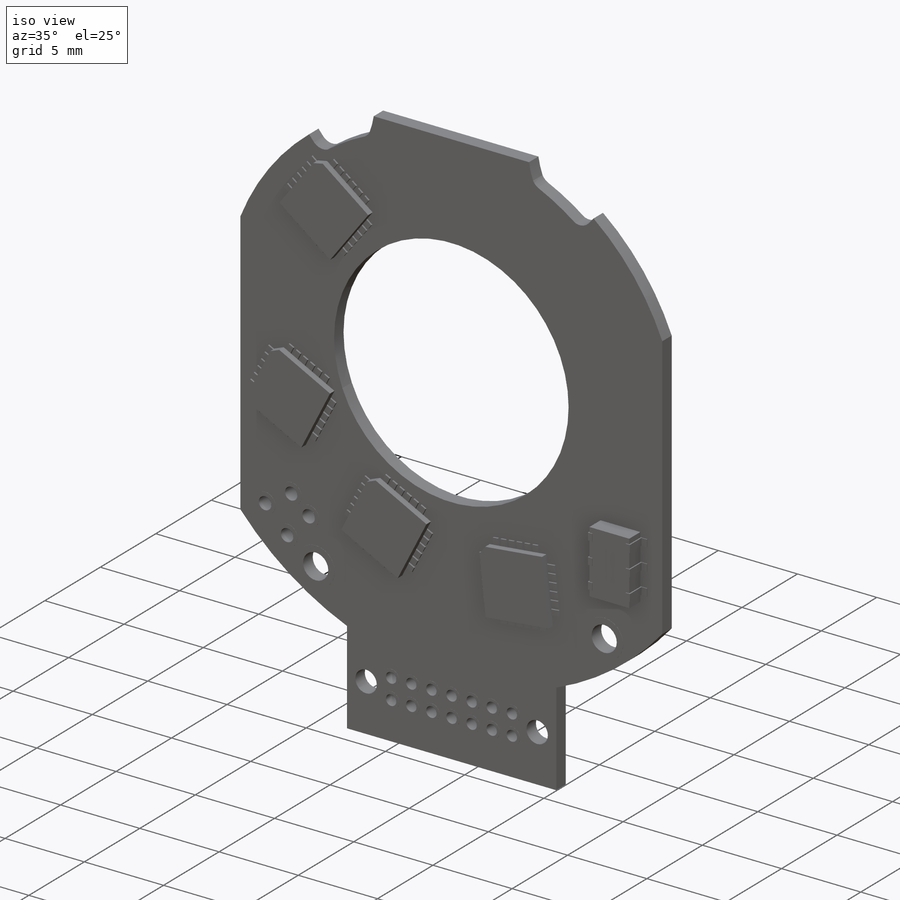
[diagram: iso view]
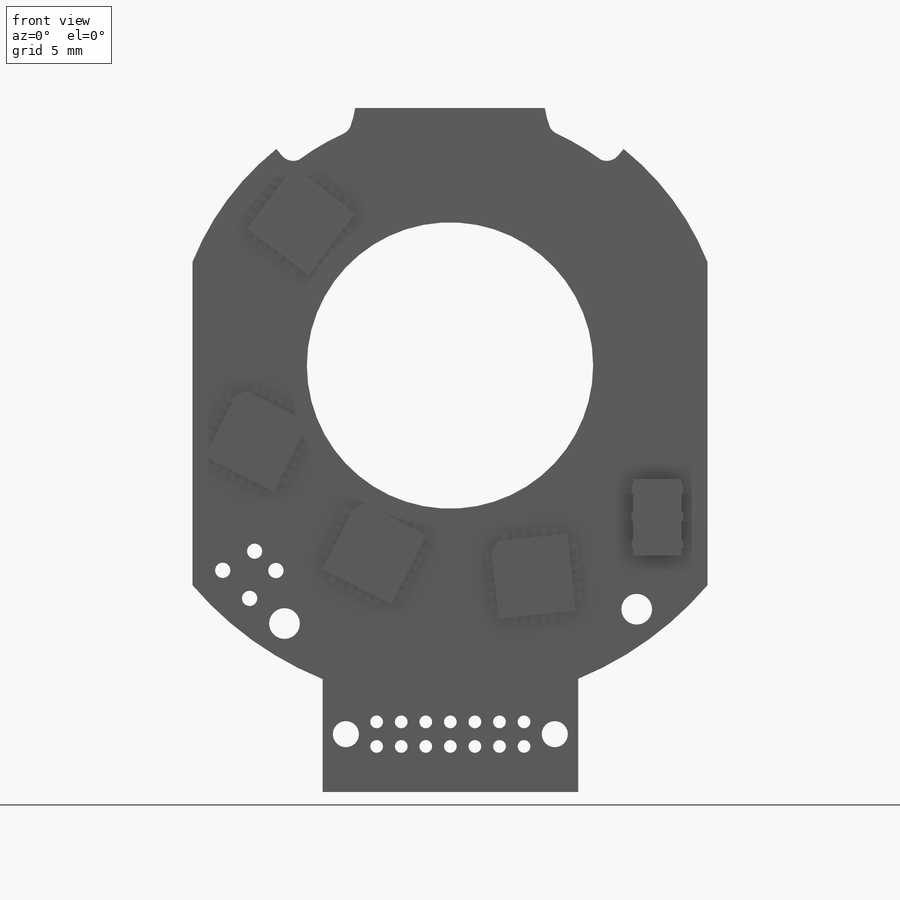
[diagram: front view]
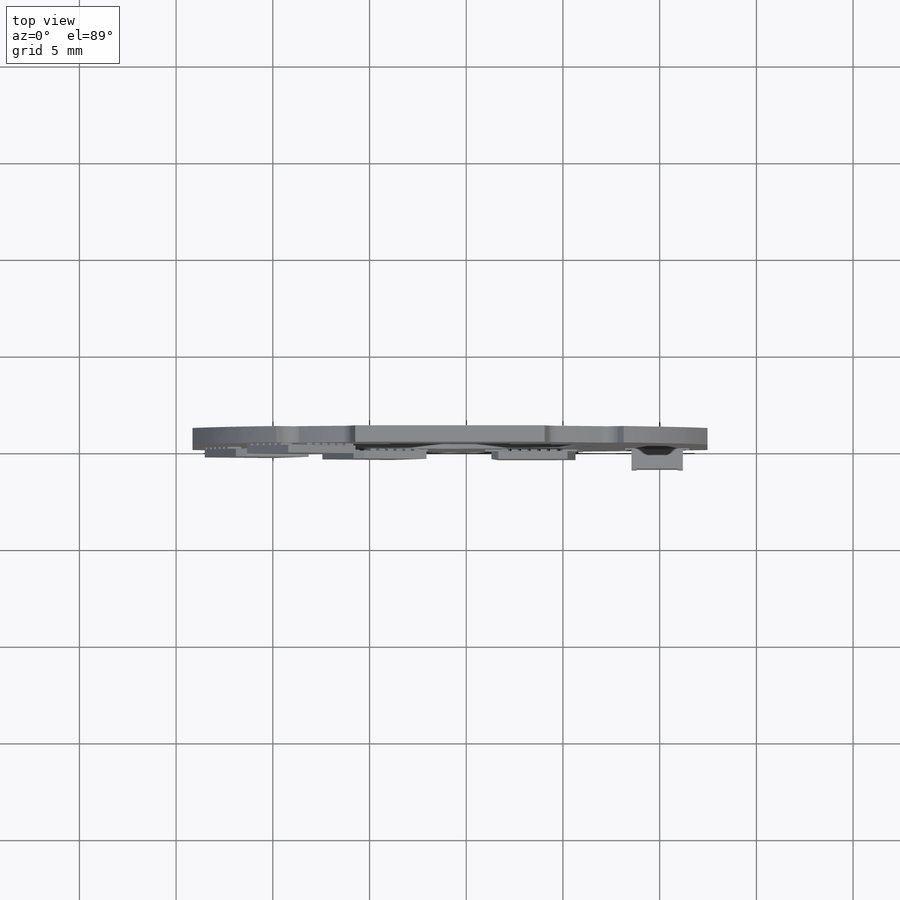
[diagram: top view]
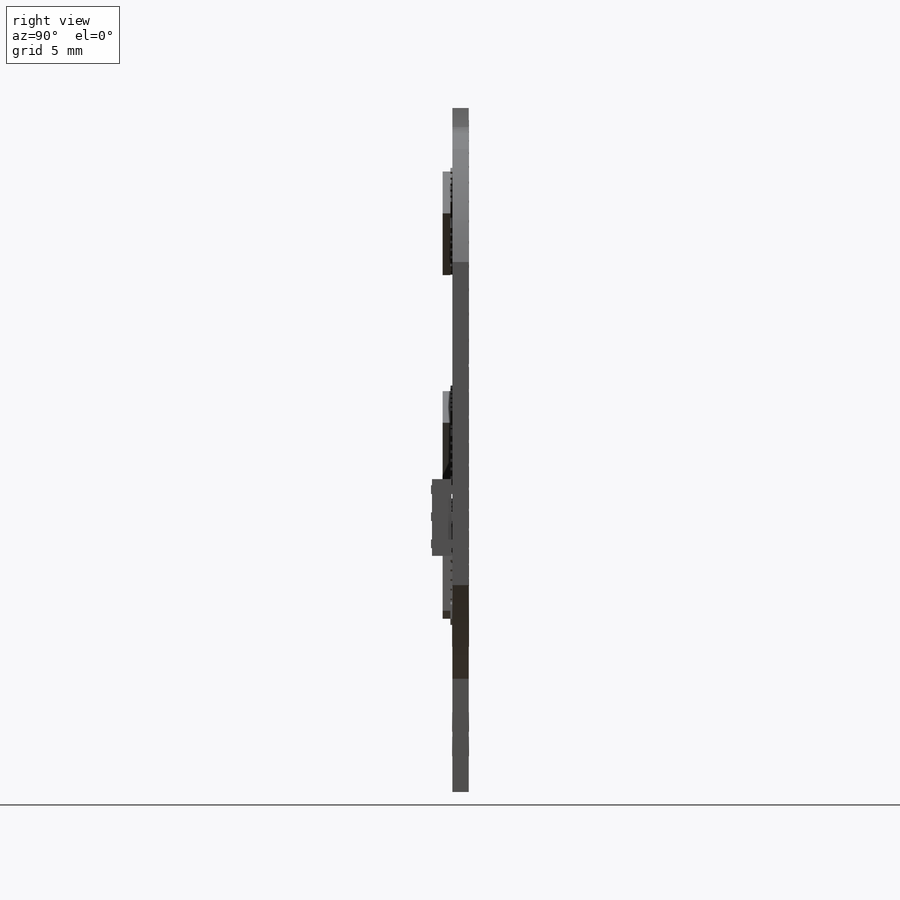
[diagram: right view]
SOLIDWORKS PART (.sldprt)
format: sldprt  version: not decoded by parser v0  size: 2,948,608 bytes
history: native  units: mm
features: sketch x13, extrude x10, cut_extrude x2, material x1, plane x1, pattern_linear x1 (+16 scaffold rows collapsed; 1 parser-record rows omitted)
feature tree (45):
  scaffold x16  (default folders/planes/origin — collapsed)
  material  "Material <not specified>"
  sketch  "Sketch1"
  sketch  "Sketch2"  dims[c1.D1=0.33mm c1.D2=0.33mm c1.D3=0.8mm c1.D4=0.8mm c1.D5=0.8mm c1.D6=0.8mm c1.D7=0.8mm c1.D8=0.8mm c1.D9=0.8mm c1.D10=0.8mm c1.D11=0.8mm c1.D12=0.8mm c1.D13=0.8mm c1.D14=0.8mm c1.D15=2.3mm c1.D16=0.66mm c2.D1=8.8701mm c2.D2=1.27mm c2.D3=~13.237825mm c2.D5=1.5651mm c2.D6=5.61mm c2.D7=2.9551mm c2.D8=4.16mm c2.D11=3.2151mm c2.D12=6.6mm c2.D13=4.3151mm c2.D14=5.6mm c3.D2=14.5mm c3.D6=~6.687179mm c4.D2=14.5mm]
  parser-record x1  (decoder bookkeeping rows leaked as tree rows — omitted from the tree; the rows remain in map.json)
  extrude  "Extrude1"  Depth=0.85mm
  plane  "Plane1"  Offset=0.1mm
  sketch  "Sketch3"
  extrude  "Extrude2"  Depth=0.1mm
  sketch  "Sketch4"
  extrude  "Extrude3"  Depth=0.4mm
  sketch  "Sketch18"  dims[D1=0.75mm]
  extrude  "Extrude16"  [1 undecoded]
  sketch  "Sketch19"  dims[D1=2.4mm D2=2.4mm D3=1.3mm D4=1.3mm D5=1.3mm D6=1.3mm D8=1.14mm]
  extrude  "via"  Depth=0.01mm
  sketch  "Sketch20"  dims[c1.D10=19.8mm c1.D11=15.0mm c1.D12=15.0mm c2.D11=15.0mm c2.D13=~10.217837mm c2.D1=162.0deg c3.D1=0.08mm c3.D2=0.08mm c3.D3=0.08mm c3.D4=0.08mm c3.D5=~2.36094mm c4.D5=5.5deg c4.D6=~2.447175mm c5.D6=5.5deg c5.D7=~2.427981mm c6.D7=0.75deg c6.D8=~2.468626mm c7.D8=0.75deg c7.D9=~2.472778mm c8.D9=5.0deg c9.D9=~2.472778mm c10.D9=5.5deg c10.D11=20.0]
  extrude  "Pattern"  Depth=0.01mm
  sketch  "Sketch23"
  extrude  "Boss-Extrude2"  Depth=1mm
  sketch  "Sketch24"  dims[D1=3.0]
  extrude  "Boss-Extrude3"  Depth=0.05mm
  sketch  "Sketch25"  dims[D1=3.0]
  extrude  "Boss-Extrude4"  Depth=0.05mm
  sketch  "Sketch26"  dims[c1.D2=0.67mm c1.D4=0.67mm c1.D5=0.67mm c2.D4=5.825mm c2.D5=5.825mm c2.D1=7.0 c2.D3=2.0 c2.D6=7.0]
  cut_extrude  "Cut-Extrude1"  [1 undecoded]
  sketch  "Sketch31"  dims[c1.D1=1.35mm c1.D2=1.35mm c1.D4=1.35mm c1.D3=1.35mm c2.D4=1.35mm c2.D1=5.4mm c2.D2=0.635mm c3.D4=10.8mm]
  cut_extrude  "Cut-Extrude2"  [1 undecoded]
  sketch  "Sketch32"
  extrude  "Boss-Extrude6"  Depth=0.86mm
  pattern_linear  "LPattern11"  Count1=7 Count2=2 Spacing1=1.27mm Spacing2=1.27mm
decode coverage: 18 of 26 modeling features carry decoded parameters
note: ~ marks probable driven/reference dimensions
note: 3 parameter values undecoded
summary: no parameter record found for 3 features
note: suppression state not decoded; provenance and decode notes live in map.json
